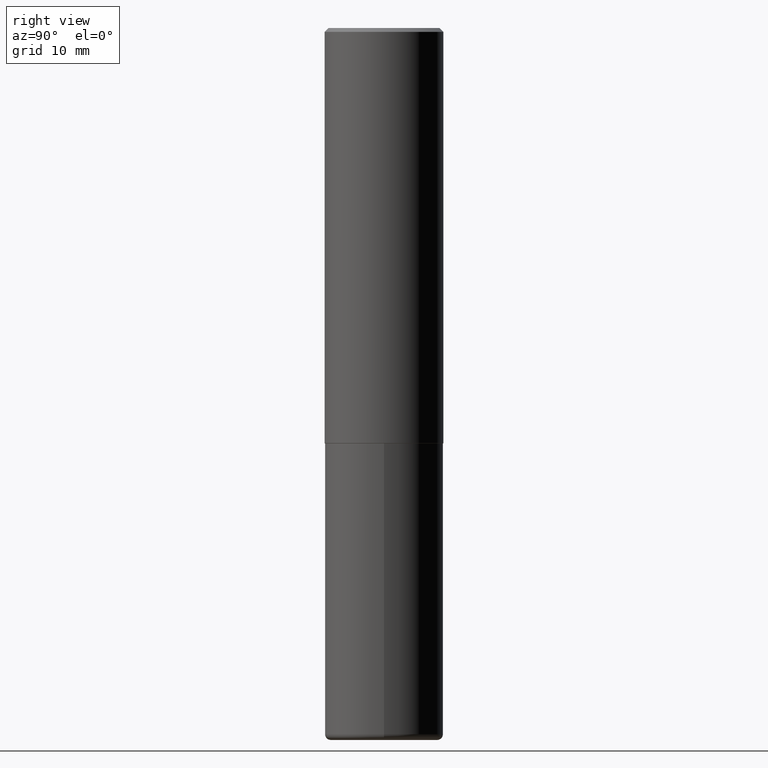
[diagram: clean part render]
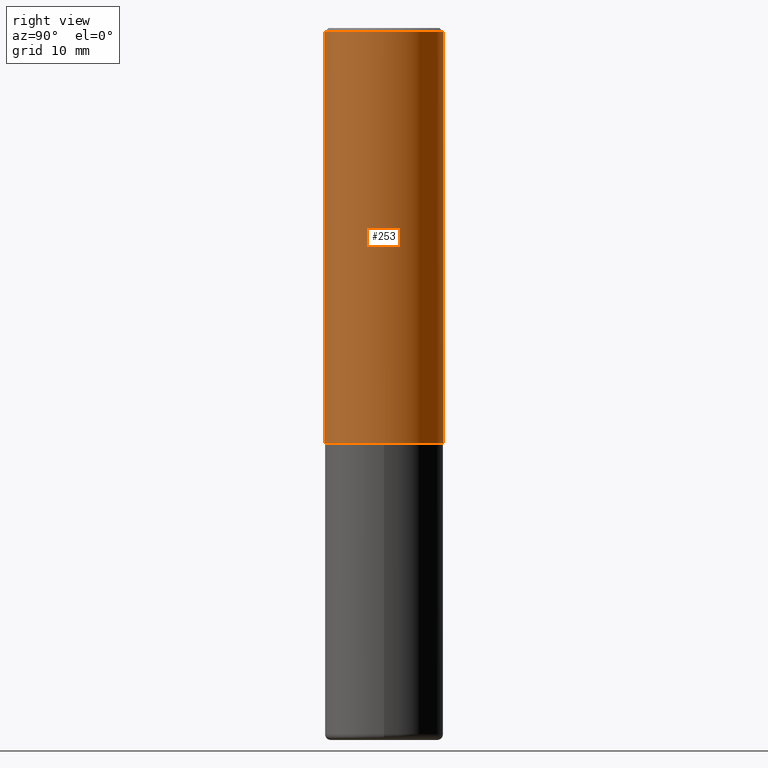
[diagram: same view with one face highlighted and labeled with its STEP entity id]
A machine part, right view. The second image highlights one B-rep face of the part: STEP entity #253.
In plain terms, the highlighted cylindrical surface (partial cylindrical patch) has radius 7.9375 mm, axis along (-0, 0, 1).
Its self-contained STEP definition (entity closure, byte-faithful):
#4 = ORIENTED_EDGE ( 'NONE', *, *, #191, .F. ) ;
#7 = CARTESIAN_POINT ( 'NONE',  ( 5.348352127477146811E-29, -7.632212748918013096E-15, -2.186500000000000110 ) ) ;
#10 = EDGE_CURVE ( 'NONE', #34, #105, #149, .T. ) ;
#14 = AXIS2_PLACEMENT_3D ( 'NONE', #7, #134, #88 ) ;
#28 = ORIENTED_EDGE ( 'NONE', *, *, #10, .T. ) ;
#34 = VERTEX_POINT ( 'NONE', #58 ) ;
#42 = EDGE_LOOP ( 'NONE', ( #57, #28, #91, #4 ) ) ;
#57 = ORIENTED_EDGE ( 'NONE', *, *, #141, .T. ) ;
#58 = CARTESIAN_POINT ( 'NONE',  ( 2.220446049250340691E-15, 0.3124999999999926170, -2.186500000000000998 ) ) ;
#88 = DIRECTION ( 'NONE',  ( -6.982962677686265922E-15, -1.000000000000000000, 3.496765431890253764E-15 ) ) ;
#91 = ORIENTED_EDGE ( 'NONE', *, *, #286, .F. ) ;
#105 = VERTEX_POINT ( 'NONE', #296 ) ;
#109 = CARTESIAN_POINT ( 'NONE',  ( -2.143905624303602824E-15, -0.3125000000000000555, -0.01999999999999897693 ) ) ;
#131 = VECTOR ( 'NONE', #411, 39.37007874015748143 ) ;
#134 = DIRECTION ( 'NONE',  ( -2.446079180186209356E-29, 3.490607248533278647E-15, 1.000000000000000000 ) ) ;
#136 = DIRECTION ( 'NONE',  ( -2.446079180186209356E-29, 3.490607248533278647E-15, 1.000000000000000000 ) ) ;
#141 = EDGE_CURVE ( 'NONE', #245, #34, #195, .T. ) ;
#146 = CARTESIAN_POINT ( 'NONE',  ( 2.220446049250313475E-15, 0.3125000000000001665, -1.090814765166650021E-15 ) ) ;
#149 = LINE ( 'NONE', #146, #131 ) ;
#162 = CIRCLE ( 'NONE', #183, 0.3125000000000000000 ) ;
#168 = DIRECTION ( 'NONE',  ( -6.982962677686265133E-15, -1.000000000000000000, 3.490607248533278253E-15 ) ) ;
#172 = FACE_OUTER_BOUND ( 'NONE', #42, .T. ) ;
#183 = AXIS2_PLACEMENT_3D ( 'NONE', #201, #236, #204 ) ;
#187 = AXIS2_PLACEMENT_3D ( 'NONE', #229, #300, #168 ) ;
#190 = LINE ( 'NONE', #295, #351 ) ;
#191 = EDGE_CURVE ( 'NONE', #245, #262, #190, .T. ) ;
#195 = CIRCLE ( 'NONE', #14, 0.3125000000000002776 ) ;
#201 = CARTESIAN_POINT ( 'NONE',  ( 4.892158360372435246E-31, -6.981214497066581551E-17, -0.02000000000000006981 ) ) ;
#204 = DIRECTION ( 'NONE',  ( -6.982962677686265133E-15, -1.000000000000000000, 3.496765431890256920E-15 ) ) ;
#229 = CARTESIAN_POINT ( 'NONE',  ( 0.000000000000000000, 0.000000000000000000, 0.000000000000000000 ) ) ;
#236 = DIRECTION ( 'NONE',  ( -2.446079180186209356E-29, 3.490607248533278647E-15, 1.000000000000000000 ) ) ;
#245 = VERTEX_POINT ( 'NONE', #403 ) ;
#253 = ADVANCED_FACE ( 'NONE', ( #172 ), #269, .T. ) ;
#262 = VERTEX_POINT ( 'NONE', #109 ) ;
#269 = CYLINDRICAL_SURFACE ( 'NONE', #187, 0.3125000000000001665 ) ;
#286 = EDGE_CURVE ( 'NONE', #262, #105, #162, .T. ) ;
#295 = CARTESIAN_POINT ( 'NONE',  ( -2.182175836776959136E-15, -0.3125000000000001665, 1.090814765166650021E-15 ) ) ;
#296 = CARTESIAN_POINT ( 'NONE',  ( 2.182175836776958741E-15, 0.3124999999999999445, -0.02000000000000116268 ) ) ;
#300 = DIRECTION ( 'NONE',  ( -2.446079180186209356E-29, 3.490607248533278647E-15, 1.000000000000000000 ) ) ;
#351 = VECTOR ( 'NONE', #136, 39.37007874015748143 ) ;
#403 = CARTESIAN_POINT ( 'NONE',  ( -2.182175836776906677E-15, -0.3125000000000079381, -2.186499999999998778 ) ) ;
#411 = DIRECTION ( 'NONE',  ( -2.446079180186209356E-29, 3.490607248533278647E-15, 1.000000000000000000 ) ) ;